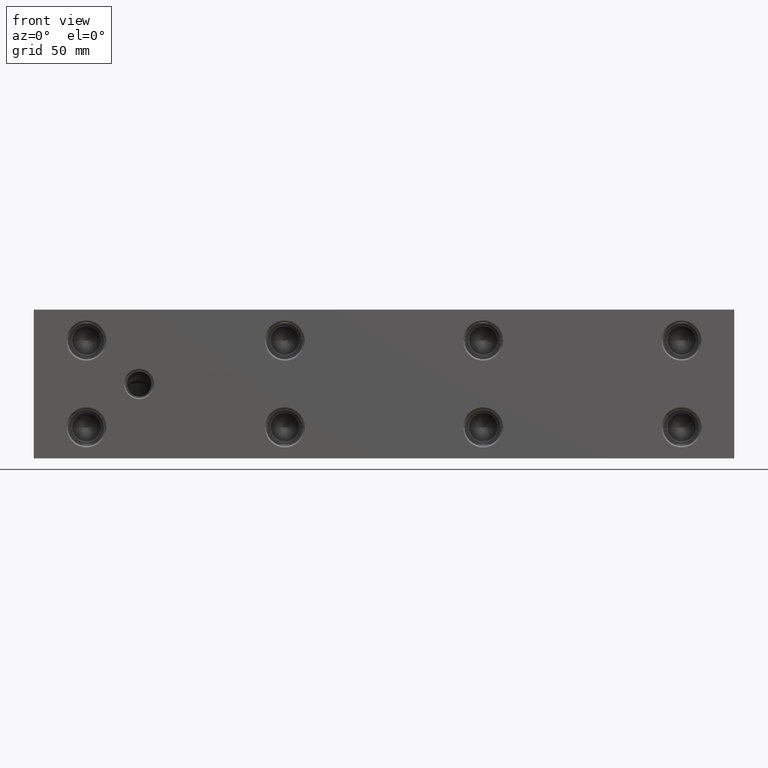
[diagram: clean part render]
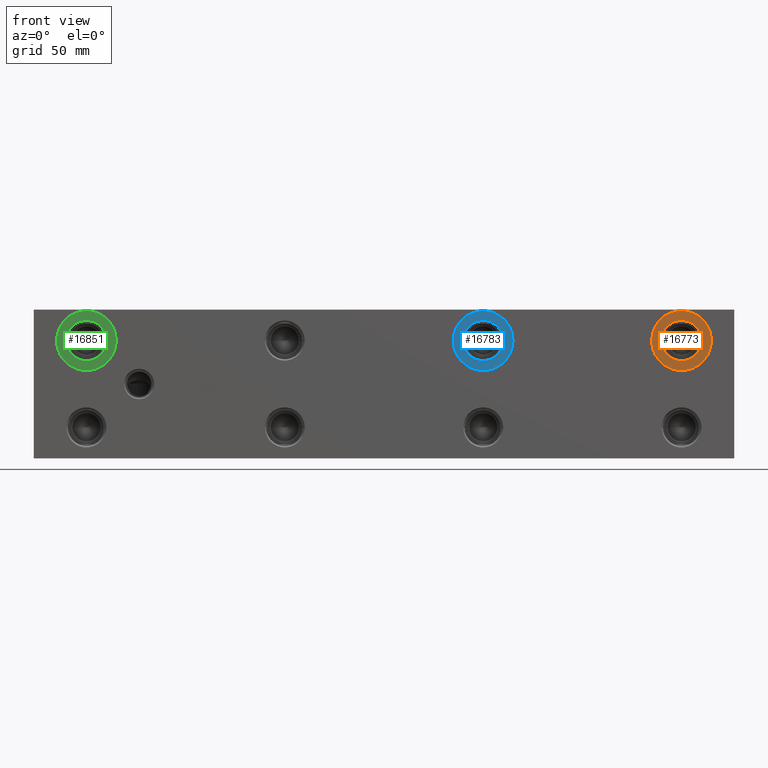
[diagram: same view with three faces highlighted in distinct colors, each labeled with its STEP entity id]
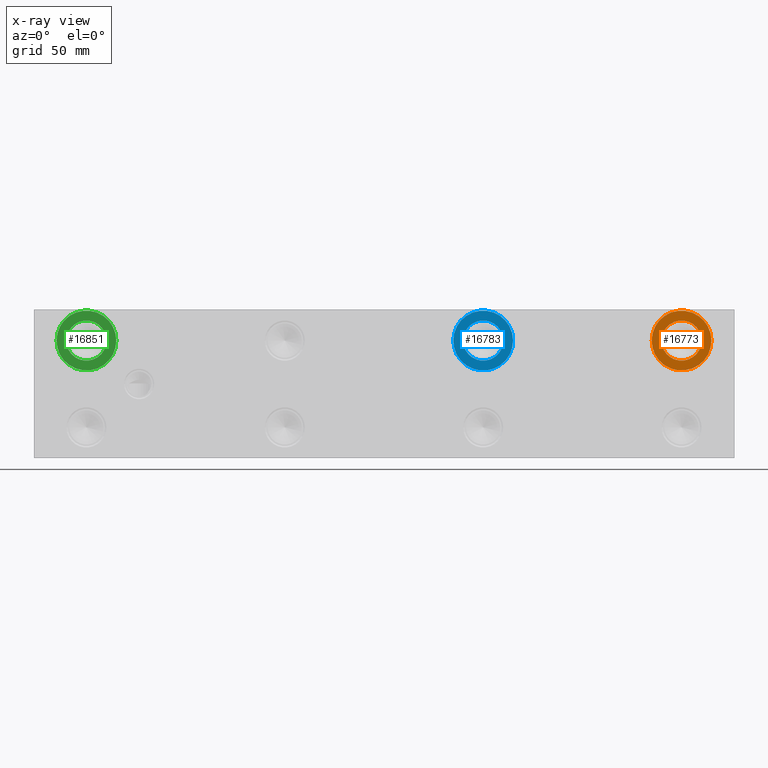
[diagram: x-ray of the same camera — body ghosted, the three highlighted faces saturated]
A machine part, front view with three faces highlighted in distinct colors.
The next image is the same camera in x-ray (body ghosted, the three faces saturated) — at least one of them is partly hidden behind the body in this view.
Their STEP definitions:

[orange] entity #16773 — the highlighted planar face has unit normal (0, 1, 0).
#554=CIRCLE('',#17779,15.3162);
#555=CIRCLE('',#17780,15.3162);
#556=CIRCLE('',#17782,10.2997);
#557=CIRCLE('',#17783,10.2997);
#880=FACE_BOUND('',#3213,.T.);
#2233=FACE_OUTER_BOUND('',#3212,.T.);
#3212=EDGE_LOOP('',(#14188,#14189));
#3213=EDGE_LOOP('',(#14190,#14191));
#7732=VERTEX_POINT('',#28650);
#7733=VERTEX_POINT('',#28652);
#7734=VERTEX_POINT('',#28656);
#7735=VERTEX_POINT('',#28657);
#9975=EDGE_CURVE('',#7732,#7733,#554,.T.);
#9976=EDGE_CURVE('',#7733,#7732,#555,.T.);
#9977=EDGE_CURVE('',#7734,#7735,#556,.T.);
#9978=EDGE_CURVE('',#7735,#7734,#557,.T.);
#14188=ORIENTED_EDGE('',*,*,#9976,.F.);
#14189=ORIENTED_EDGE('',*,*,#9975,.F.);
#14190=ORIENTED_EDGE('',*,*,#9977,.T.);
#14191=ORIENTED_EDGE('',*,*,#9978,.T.);
#15460=PLANE('',#17781);
#16773=ADVANCED_FACE('',(#2233,#880),#15460,.F.);
#17779=AXIS2_PLACEMENT_3D('',#28653,#21156,#21157);
#17780=AXIS2_PLACEMENT_3D('',#28654,#21158,#21159);
#17781=AXIS2_PLACEMENT_3D('',#28655,#21160,#21161);
#17782=AXIS2_PLACEMENT_3D('',#28658,#21162,#21163);
#17783=AXIS2_PLACEMENT_3D('',#28659,#21164,#21165);
#21156=DIRECTION('center_axis',(0.,1.,0.));
#21157=DIRECTION('ref_axis',(1.,0.,0.));
#21158=DIRECTION('center_axis',(0.,1.,0.));
#21159=DIRECTION('ref_axis',(1.,0.,0.));
#21160=DIRECTION('center_axis',(0.,1.,0.));
#21161=DIRECTION('ref_axis',(0.,0.,1.));
#21162=DIRECTION('center_axis',(0.,1.,0.));
#21163=DIRECTION('ref_axis',(1.,0.,0.));
#21164=DIRECTION('center_axis',(0.,1.,0.));
#21165=DIRECTION('ref_axis',(1.,0.,0.));
#28650=CARTESIAN_POINT('',(316.4586,0.7874,60.325));
#28652=CARTESIAN_POINT('',(347.091,0.7874,60.325));
#28653=CARTESIAN_POINT('Origin',(331.7748,0.7874,60.325));
#28654=CARTESIAN_POINT('Origin',(331.7748,0.7874,60.325));
#28655=CARTESIAN_POINT('Origin',(342.0745,0.7874,60.325));
#28656=CARTESIAN_POINT('',(342.0745,0.7874,60.325));
#28657=CARTESIAN_POINT('',(321.4751,0.78739999999999,60.325));
#28658=CARTESIAN_POINT('Origin',(331.7748,0.7874,60.325));
#28659=CARTESIAN_POINT('Origin',(331.7748,0.7874,60.325));

[blue] entity #16783 — the highlighted planar face has unit normal (0, 1, 0).
#572=CIRCLE('',#17807,15.3162);
#573=CIRCLE('',#17808,15.3162);
#574=CIRCLE('',#17810,10.2997);
#575=CIRCLE('',#17811,10.2997);
#882=FACE_BOUND('',#3225,.T.);
#2243=FACE_OUTER_BOUND('',#3224,.T.);
#3224=EDGE_LOOP('',(#14242,#14243));
#3225=EDGE_LOOP('',(#14244,#14245));
#7750=VERTEX_POINT('',#28704);
#7751=VERTEX_POINT('',#28706);
#7752=VERTEX_POINT('',#28710);
#7753=VERTEX_POINT('',#28711);
#10001=EDGE_CURVE('',#7750,#7751,#572,.T.);
#10002=EDGE_CURVE('',#7751,#7750,#573,.T.);
#10003=EDGE_CURVE('',#7752,#7753,#574,.T.);
#10004=EDGE_CURVE('',#7753,#7752,#575,.T.);
#14242=ORIENTED_EDGE('',*,*,#10002,.F.);
#14243=ORIENTED_EDGE('',*,*,#10001,.F.);
#14244=ORIENTED_EDGE('',*,*,#10003,.T.);
#14245=ORIENTED_EDGE('',*,*,#10004,.T.);
#15462=PLANE('',#17809);
#16783=ADVANCED_FACE('',(#2243,#882),#15462,.F.);
#17807=AXIS2_PLACEMENT_3D('',#28707,#21220,#21221);
#17808=AXIS2_PLACEMENT_3D('',#28708,#21222,#21223);
#17809=AXIS2_PLACEMENT_3D('',#28709,#21224,#21225);
#17810=AXIS2_PLACEMENT_3D('',#28712,#21226,#21227);
#17811=AXIS2_PLACEMENT_3D('',#28713,#21228,#21229);
#21220=DIRECTION('center_axis',(0.,1.,0.));
#21221=DIRECTION('ref_axis',(1.,0.,0.));
#21222=DIRECTION('center_axis',(0.,1.,0.));
#21223=DIRECTION('ref_axis',(1.,0.,0.));
#21224=DIRECTION('center_axis',(0.,1.,0.));
#21225=DIRECTION('ref_axis',(0.,0.,1.));
#21226=DIRECTION('center_axis',(0.,1.,0.));
#21227=DIRECTION('ref_axis',(1.,0.,0.));
#21228=DIRECTION('center_axis',(0.,1.,0.));
#21229=DIRECTION('ref_axis',(1.,0.,0.));
#28704=CARTESIAN_POINT('',(214.8586,0.7874,60.325));
#28706=CARTESIAN_POINT('',(245.491,0.7874,60.325));
#28707=CARTESIAN_POINT('Origin',(230.1748,0.7874,60.325));
#28708=CARTESIAN_POINT('Origin',(230.1748,0.7874,60.325));
#28709=CARTESIAN_POINT('Origin',(240.4745,0.7874,60.325));
#28710=CARTESIAN_POINT('',(240.4745,0.7874,60.325));
#28711=CARTESIAN_POINT('',(219.8751,0.7874,60.325));
#28712=CARTESIAN_POINT('Origin',(230.1748,0.7874,60.325));
#28713=CARTESIAN_POINT('Origin',(230.1748,0.7874,60.325));

[green] entity #16851 — the highlighted planar face has unit normal (0, 1, 0).
#673=CIRCLE('',#17976,15.3162);
#674=CIRCLE('',#17977,15.3162);
#675=CIRCLE('',#17979,10.2997);
#676=CIRCLE('',#17980,10.2997);
#894=FACE_BOUND('',#3305,.T.);
#2311=FACE_OUTER_BOUND('',#3304,.T.);
#3304=EDGE_LOOP('',(#14566,#14567));
#3305=EDGE_LOOP('',(#14568,#14569));
#7859=VERTEX_POINT('',#29038);
#7860=VERTEX_POINT('',#29040);
#7861=VERTEX_POINT('',#29044);
#7862=VERTEX_POINT('',#29045);
#10158=EDGE_CURVE('',#7859,#7860,#673,.T.);
#10159=EDGE_CURVE('',#7860,#7859,#674,.T.);
#10160=EDGE_CURVE('',#7861,#7862,#675,.T.);
#10161=EDGE_CURVE('',#7862,#7861,#676,.T.);
#14566=ORIENTED_EDGE('',*,*,#10159,.F.);
#14567=ORIENTED_EDGE('',*,*,#10158,.F.);
#14568=ORIENTED_EDGE('',*,*,#10160,.T.);
#14569=ORIENTED_EDGE('',*,*,#10161,.T.);
#15474=PLANE('',#17978);
#16851=ADVANCED_FACE('',(#2311,#894),#15474,.F.);
#17976=AXIS2_PLACEMENT_3D('',#29041,#21614,#21615);
#17977=AXIS2_PLACEMENT_3D('',#29042,#21616,#21617);
#17978=AXIS2_PLACEMENT_3D('',#29043,#21618,#21619);
#17979=AXIS2_PLACEMENT_3D('',#29046,#21620,#21621);
#17980=AXIS2_PLACEMENT_3D('',#29047,#21622,#21623);
#21614=DIRECTION('center_axis',(0.,1.,0.));
#21615=DIRECTION('ref_axis',(1.,0.,0.));
#21616=DIRECTION('center_axis',(0.,1.,0.));
#21617=DIRECTION('ref_axis',(1.,0.,0.));
#21618=DIRECTION('center_axis',(0.,1.,0.));
#21619=DIRECTION('ref_axis',(0.,0.,1.));
#21620=DIRECTION('center_axis',(0.,1.,0.));
#21621=DIRECTION('ref_axis',(1.,0.,0.));
#21622=DIRECTION('center_axis',(0.,1.,0.));
#21623=DIRECTION('ref_axis',(1.,0.,0.));
#29038=CARTESIAN_POINT('',(11.6586,0.7874,60.325));
#29040=CARTESIAN_POINT('',(42.291,0.7874,60.325));
#29041=CARTESIAN_POINT('Origin',(26.9748,0.7874,60.325));
#29042=CARTESIAN_POINT('Origin',(26.9748,0.7874,60.325));
#29043=CARTESIAN_POINT('Origin',(37.2745,0.7874,60.325));
#29044=CARTESIAN_POINT('',(37.2745,0.7874,60.325));
#29045=CARTESIAN_POINT('',(16.6751,0.787399999999999,60.325));
#29046=CARTESIAN_POINT('Origin',(26.9748,0.7874,60.325));
#29047=CARTESIAN_POINT('Origin',(26.9748,0.7874,60.325));